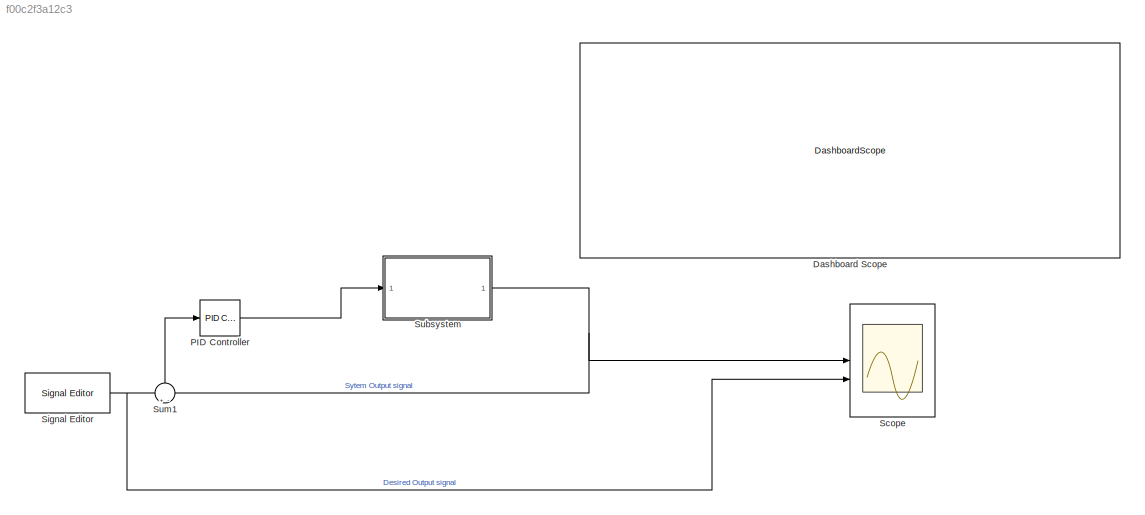
MODEL slx_f00c2f3a12c3
KIND model
CONFIG AbsTol = auto
CONFIG EnableMultiTasking = off
CONFIG FixedStep = auto
CONFIG MaxStep = auto
CONFIG MinStep = auto
CONFIG RelTol = 1e-3
CONFIG SampleTimeConstraint = Unconstrained
CONFIG SolverName = VariableStepAuto
CONFIG StartTime = 0.0
CONFIG StopTime = 1000
BLOCK [DashboardScope] Dashboard Scope
BLOCK [Reference] PID Controller  REF=slpidlib/PID Controller
  LibrarySourceBlock = simulink/Continuous/PID Controller
  SourceBlock = slpidlib/PID Controller
  SourceType = PID 1dof
BLOCK [Scope] Scope
  Floating = off
  NumInputPorts = 2
  ScopeSpecificationString = Simulink.scopes.TimeScopeBlockCfg('CurrentConfiguration', extmgr.ConfigurationSet(extmgr.Configuration('Core','General UI',true),extmgr.Configuration('Core','Source UI',true),extmgr.Configuration('Sources','WiredSimulink',true,'DataLoggingVariableName','ScopeData1'),extmgr.Configuration('Visuals','Time Domain',true,'SerializedDisplays',{struct('MinYLimReal','-0.12734','MaxYLimReal','1.12732','YLab...<+1500ch>
BLOCK [Reference] Signal Editor  REF=SignalEditorBlockLib/Signal Editor
  LibrarySourceBlock = simulink/Sources/Signal Editor
  SourceBlock = SignalEditorBlockLib/Signal Editor
  SourceType = SignalEditor
  UserDataPersistent = on
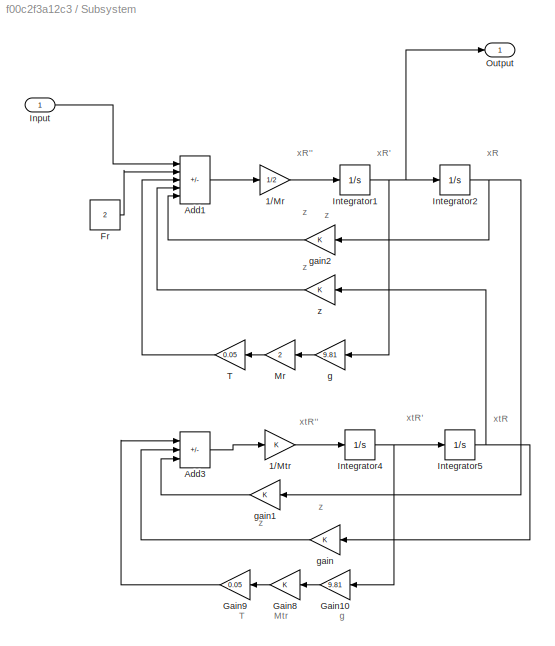
BLOCK [SubSystem] Subsystem
BLOCK [Gain] Subsystem/1//Mr
  Gain = 1/2
BLOCK [Gain] Subsystem/1//Mtr
BLOCK [Sum] Subsystem/Add1
  IconShape = rectangular
  Inputs = ++--+
BLOCK [Sum] Subsystem/Add3
  IconShape = rectangular
  Inputs = --+
BLOCK [Constant] Subsystem/Fr
  Value = 2
BLOCK [Gain] Subsystem/Gain10
  Gain = 9.81
  NameLocation = top
BLOCK [Gain] Subsystem/Gain8
  NameLocation = top
BLOCK [Gain] Subsystem/Gain9
  Gain = 0.05
  NameLocation = top
BLOCK [Inport] Subsystem/Input
BLOCK [Integrator] Subsystem/Integrator1
BLOCK [Integrator] Subsystem/Integrator2
BLOCK [Integrator] Subsystem/Integrator4
BLOCK [Integrator] Subsystem/Integrator5
BLOCK [Gain] Subsystem/Mr
  Gain = 2
  NameLocation = top
BLOCK [Outport] Subsystem/Output
BLOCK [Gain] Subsystem/T
  Gain = 0.05
  NameLocation = top
BLOCK [Gain] Subsystem/g
  Gain = 9.81
  NameLocation = top
BLOCK [Gain] Subsystem/gain
  NameLocation = top
BLOCK [Gain] Subsystem/gain1
  NameLocation = top
BLOCK [Gain] Subsystem/gain2
  NameLocation = top
BLOCK [Gain] Subsystem/z
  NameLocation = top
BLOCK [Sum] Sum1
  Inputs = +-
  NameLocation = right
ANNOTATION Subsystem: Mtr
ANNOTATION Subsystem: T
ANNOTATION Subsystem: g
ANNOTATION Subsystem: xR
ANNOTATION Subsystem: xR'
ANNOTATION Subsystem: xR''
ANNOTATION Subsystem: xtR
ANNOTATION Subsystem: xtR'
ANNOTATION Subsystem: xtR''
ANNOTATION Subsystem: z
LINE PID Controller:1 -> Subsystem:1
NET Signal Editor:1 -> Scope:2, Sum1:1
LINE Subsystem/1//Mr:1 -> Subsystem/Integrator1:1
LINE Subsystem/1//Mtr:1 -> Subsystem/Integrator4:1
LINE Subsystem/Add1:1 -> Subsystem/1//Mr:1
LINE Subsystem/Add3:1 -> Subsystem/1//Mtr:1
LINE Subsystem/Fr:1 -> Subsystem/Add1:2
LINE Subsystem/Gain10:1 -> Subsystem/Gain8:1
LINE Subsystem/Gain8:1 -> Subsystem/Gain9:1
LINE Subsystem/Gain9:1 -> Subsystem/Add3:1
LINE Subsystem/Input:1 -> Subsystem/Add1:1
NET Subsystem/Integrator1:1 -> Subsystem/Integrator2:1, Subsystem/Output:1, Subsystem/g:1
NET Subsystem/Integrator2:1 -> Subsystem/gain1:1, Subsystem/gain2:1
NET Subsystem/Integrator4:1 -> Subsystem/Gain10:1, Subsystem/Integrator5:1
NET Subsystem/Integrator5:1 -> Subsystem/gain:1, Subsystem/z:1
LINE Subsystem/Mr:1 -> Subsystem/T:1
LINE Subsystem/T:1 -> Subsystem/Add1:3
LINE Subsystem/g:1 -> Subsystem/Mr:1
LINE Subsystem/gain1:1 -> Subsystem/Add3:3
LINE Subsystem/gain2:1 -> Subsystem/Add1:5
LINE Subsystem/gain:1 -> Subsystem/Add3:2
LINE Subsystem/z:1 -> Subsystem/Add1:4
NET Subsystem:1 -> Scope:1, Sum1:2
LINE Sum1:1 -> PID Controller:1
note: NET lines group one-source signal fan-out (src -> all destinations, sorted); 1:1 wires keep LINE
